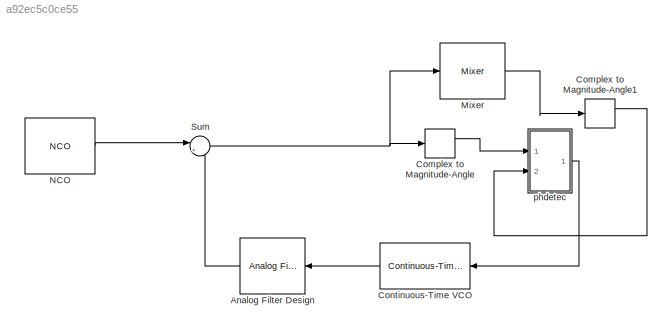
MODEL slx_a92ec5c0ce55
KIND model
CONFIG AbsTol = auto
CONFIG FixedStep = auto
CONFIG MaxStep = auto
CONFIG MinStep = auto
CONFIG RelTol = 1e-3
CONFIG SampleTimeConstraint = Unconstrained
CONFIG Solver = VariableStepAuto
CONFIG SolverMode = Auto
CONFIG SolverName = VariableStepAuto
CONFIG StartTime = 0.0
CONFIG StopTime = 10.0
BLOCK [Reference] Analog Filter Design  REF=dsparch4/Analog
Filter Design
  Ports = [1, 1]
  SourceBlock = dsparch4/Analog\nFilter Design
  SourceType = Analog Filter Design
BLOCK [ComplexToMagnitudeAngle] Complex to Magnitude-Angle
  Ports = [1, 2]
BLOCK [ComplexToMagnitudeAngle] Complex to Magnitude-Angle1
  Ports = [1, 2]
BLOCK [Reference] Continuous-Time VCO  REF=commsynccomp2/Continuous-Time
VCO
  Ports = [1, 1]
  SourceBlock = commsynccomp2/Continuous-Time\nVCO
  SourceType = Continuous-Time VCO
BLOCK [Reference] Mixer  REF=rfmathmodels1/Mixer
  Ports = [1, 1]
  SourceBlock = rfmathmodels1/Mixer
  SourceType = Mixer
BLOCK [Reference] NCO  REF=dspsigops/NCO
  Ports = [0, 1]
  SourceBlock = dspsigops/NCO
  SourceType = NCO
BLOCK [Sum] Sum
  IconShape = round
  InputSameDT = off
  Inputs = |++
  OutDataTypeStr = Inherit: Inherit via internal rule
  Ports = [2, 1]
  SaturateOnIntegerOverflow = off
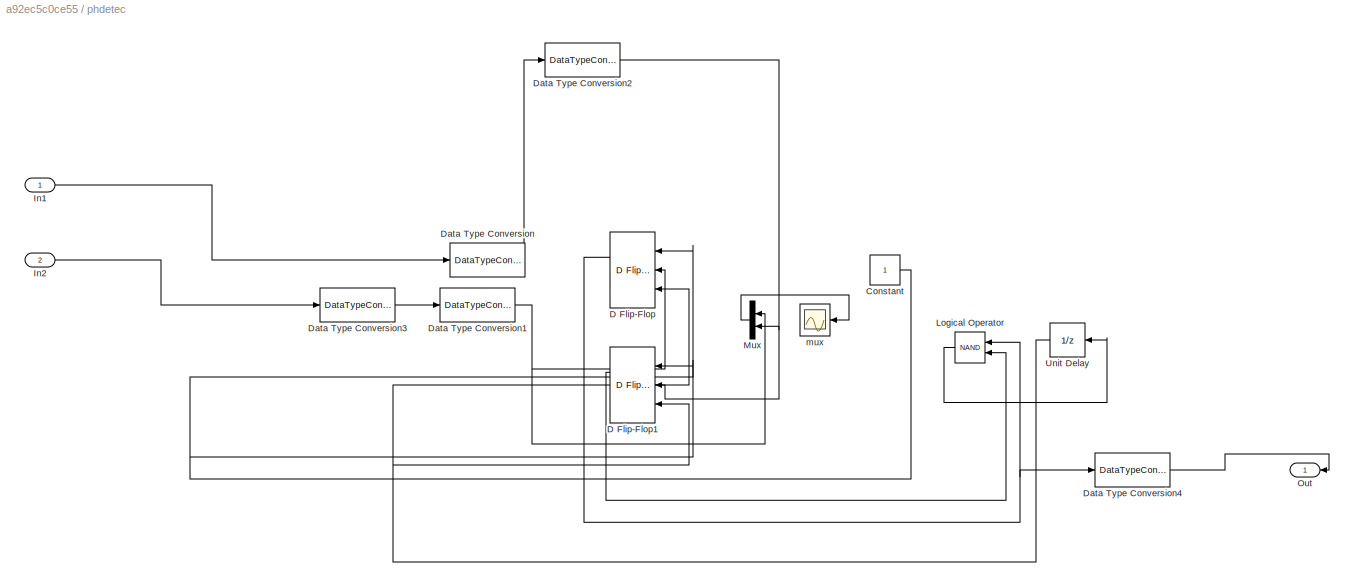
BLOCK [SubSystem] phdetec 
  Ports = [2, 1]
  RequestExecContextInheritance = off
  Variant = off
BLOCK [Constant] phdetec /Constant
  OutDataTypeStr = boolean
BLOCK [Reference] phdetec /D Flip-Flop  REF=simulink_extras/Flip Flops/D Flip-Flop
  Ports = [3, 2]
  SourceBlock = simulink_extras/Flip Flops/D Flip-Flop
  SourceType = DFlipFlop
BLOCK [Reference] phdetec /D Flip-Flop1  REF=simulink_extras/Flip Flops/D Flip-Flop
  Ports = [3, 2]
  SourceBlock = simulink_extras/Flip Flops/D Flip-Flop
  SourceType = DFlipFlop
BLOCK [DataTypeConversion] phdetec /Data Type Conversion
  OutDataTypeStr = int8
  RndMeth = Floor
  SaturateOnIntegerOverflow = off
BLOCK [DataTypeConversion] phdetec /Data Type Conversion1
  OutDataTypeStr = boolean
  RndMeth = Floor
  SaturateOnIntegerOverflow = off
BLOCK [DataTypeConversion] phdetec /Data Type Conversion2
  OutDataTypeStr = boolean
  RndMeth = Floor
  SaturateOnIntegerOverflow = off
BLOCK [DataTypeConversion] phdetec /Data Type Conversion3
  OutDataTypeStr = int8
  RndMeth = Floor
  SaturateOnIntegerOverflow = off
BLOCK [DataTypeConversion] phdetec /Data Type Conversion4
  OutDataTypeStr = double
  RndMeth = Floor
  SaturateOnIntegerOverflow = off
BLOCK [Inport] phdetec /In1
  IconDisplay = Port number
BLOCK [Inport] phdetec /In2
  IconDisplay = Port number
  Port = 2
BLOCK [Logic] phdetec /Logical Operator
  AllPortsSameDT = off
  Operator = NAND
  OutDataTypeStr = boolean
  Ports = [2, 1]
BLOCK [Mux] phdetec /Mux
  DisplayOption = bar
  Inputs = 2
  Ports = [2, 1]
BLOCK [Outport] phdetec /Out 
  IconDisplay = Port number
BLOCK [UnitDelay] phdetec /Unit Delay
  InputProcessing = Elements as channels (sample based)
  SampleTime = 0.01
BLOCK [Scope] phdetec /mux 
  Ports = [1]
  ScopeSpecificationString = Simulink.scopes.TimeScopeBlockCfg('CurrentConfiguration', extmgr.ConfigurationSet(extmgr.Configuration('Core','General UI',true),extmgr.Configuration('Core','Source UI',true),extmgr.Configuration('Sources','WiredSimulink',true,'DataLoggingVariableName','ScopeData2','DataLoggingLimitDataPoints',true,'DataLoggingSaveFormat','Array','DataLoggingDecimation','1','DataLoggingDecimateData',true),extmgr.C...<+1546ch>
LINE Analog Filter Design:1 -> Sum:2
LINE Complex to Magnitude-Angle1:1 -> phdetec :2
LINE Complex to Magnitude-Angle:1 -> phdetec :1
LINE Continuous-Time VCO:1 -> Analog Filter Design:1
LINE Mixer:1 -> Complex to Magnitude-Angle1:1
LINE NCO:1 -> Sum:1
NET Sum:1 -> Complex to Magnitude-Angle:1, Mixer:1
NET phdetec /Constant:1 -> phdetec /D Flip-Flop1:1, phdetec /D Flip-Flop:1
LINE phdetec /D Flip-Flop1:1 -> phdetec /Logical Operator:2
NET phdetec /D Flip-Flop:1 -> phdetec /Data Type Conversion4:1, phdetec /Logical Operator:1
NET phdetec /Data Type Conversion1:1 -> phdetec /D Flip-Flop:2, phdetec /Mux:1
NET phdetec /Data Type Conversion2:1 -> phdetec /D Flip-Flop1:2, phdetec /Mux:2
LINE phdetec /Data Type Conversion3:1 -> phdetec /Data Type Conversion1:1
LINE phdetec /Data Type Conversion4:1 -> phdetec /Out :1
LINE phdetec /Data Type Conversion:1 -> phdetec /Data Type Conversion2:1
LINE phdetec /In1:1 -> phdetec /Data Type Conversion:1
LINE phdetec /In2:1 -> phdetec /Data Type Conversion3:1
LINE phdetec /Logical Operator:1 -> phdetec /Unit Delay:1
LINE phdetec /Mux:1 -> phdetec /mux :1
NET phdetec /Unit Delay:1 -> phdetec /D Flip-Flop1:3, phdetec /D Flip-Flop:3
LINE phdetec :1 -> Continuous-Time VCO:1
note: NET lines group one-source signal fan-out (src -> all destinations, sorted); 1:1 wires keep LINE
